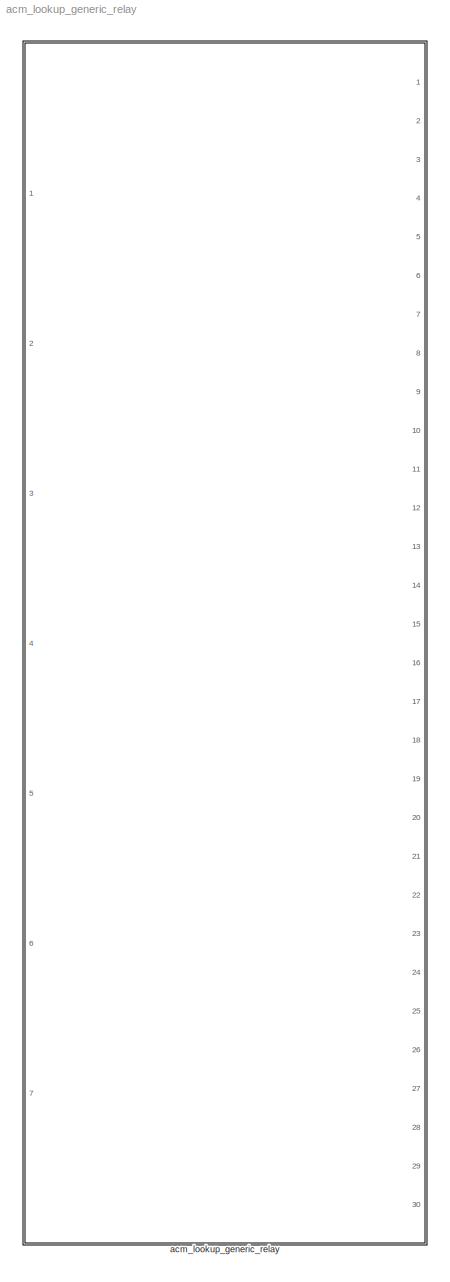
MODEL acm_lookup_generic_relay
KIND library
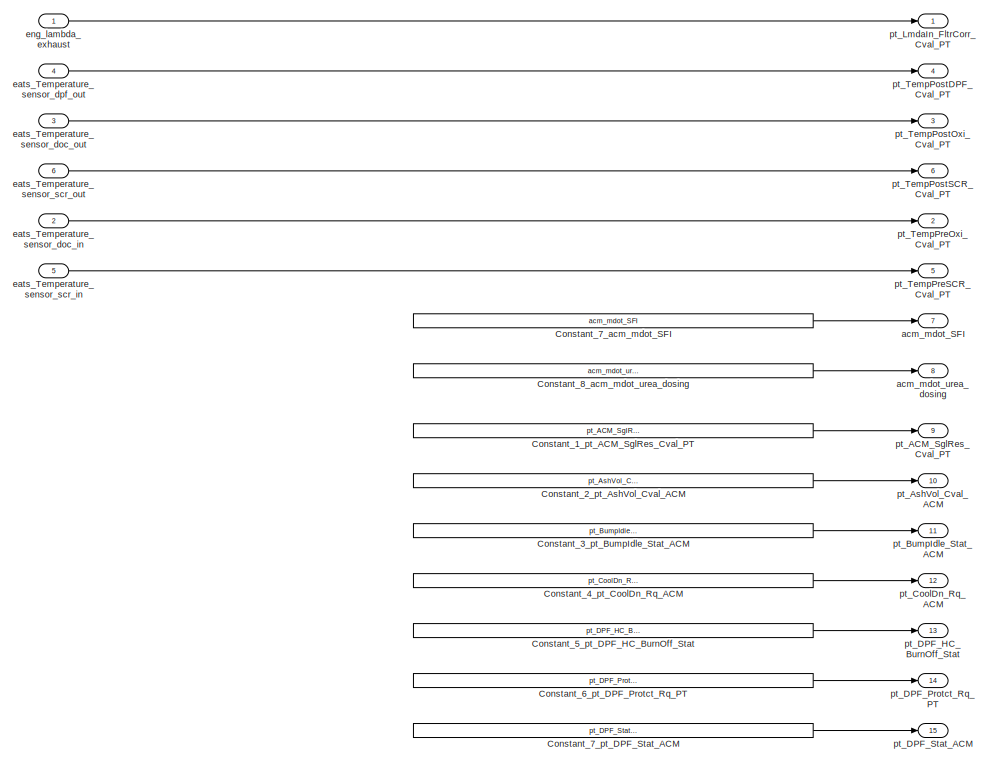
[diagram: acm_lookup_generic_relay - part 1/2, full width, top band]
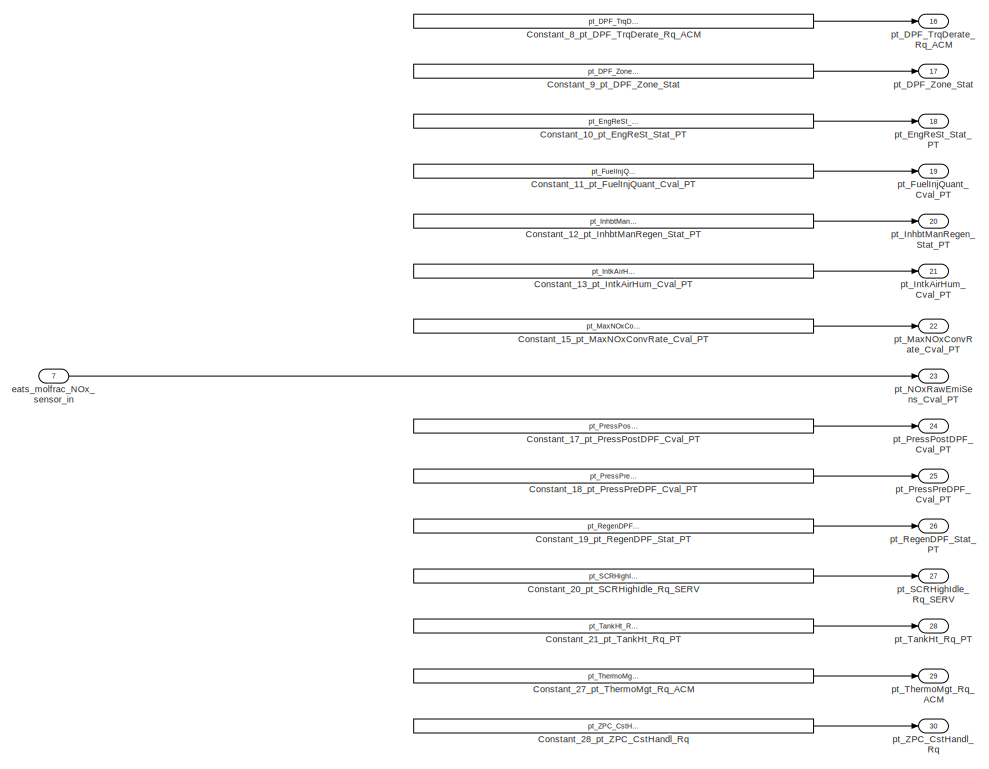
[diagram: acm_lookup_generic_relay - part 2/2, full width, bottom band]
BLOCK [SubSystem] acm_lookup_generic_relay
  FunctionWithSeparateData = off
  MaskCallbackString = |||||||||||||||||||||||
  MaskDescription = This block relays signals of engine and EATS to allow a correct MCM operation for thermomanagent map determination according EATS temperatures and NOx sensor signal without an real ACM.\n\nThe SFI and urea dosing values are only constant signals to satisfy special MCM instruemantion blocks (OutputMVA).
  MaskEnableString = on,on,on,on,on,on,on,on,on,on,on,on,on,on,on,on,on,on,on,on,on,on,on,on
  MaskHideContents = off
  MaskIconFrame = on
  MaskIconOpaque = on
  MaskIconRotate = none
  MaskIconUnits = autoscale
  MaskPortRotate = default
  MaskPromptString = Massflow of secondary fuel injection (before DOC) (constant) [g/s]|Massflow of urea/AdBlue (constant) [g/h]|Constant value of pt_ACM_SglRes_Cval_PT|Constant value of  pt_AshVol_Cval_ACM|Constant value of pt_BumpIdle_Stat_ACM|Constant value of pt_CoolDn_Rq_ACM|Constant value of pt_DPF_HC_BurnOff_Stat|Constant value of pt_DPF_Protct_Rq_PT|Constant value of pt_DPF_Stat_ACM|Constant value of pt_DPF_Tr...<+569ch>
  MaskStyleString = edit,edit,edit,edit,edit,edit,edit,edit,edit,edit,edit,edit,edit,edit,edit,edit,edit,edit,edit,edit,edit,edit,edit,edit
  MaskToolTipString = on,on,on,on,on,on,on,on,on,on,on,on,on,on,on,on,on,on,on,on,on,on,on,on
  MaskTunableValueString = on,on,on,on,on,on,on,on,on,on,on,on,on,on,on,on,on,on,on,on,on,on,on,on
  MaskType = DIVeMB lookup
  MaskValueString = sMP.ctrl.acm.out.acm_mdot_SFI|sMP.ctrl.acm.out.acm_mdot_urea_dosing|sMP.ctrl.acm.out.pt_ACM_SglRes_Cval_PT|sMP.ctrl.acm.out.pt_AshVol_Cval_ACM|sMP.ctrl.acm.out.pt_BumpIdle_Stat_ACM|sMP.ctrl.acm.out.pt_CoolDn_Rq_ACM|sMP.ctrl.acm.out.pt_DPF_HC_BurnOff_Stat|sMP.ctrl.acm.out.pt_DPF_Protct_Rq_PT|sMP.ctrl.acm.out.pt_DPF_Stat_ACM|sMP.ctrl.acm.out.pt_DPF_TrqDerate_Rq_ACM|sMP.ctrl.acm.out.pt_DPF_Zone_Stat|...<+506ch>
  MaskVariables = acm_mdot_SFI=@1;acm_mdot_urea_dosing=@2;pt_ACM_SglRes_Cval_PT=@3;pt_AshVol_Cval_ACM=@4;pt_BumpIdle_Stat_ACM=@5;pt_CoolDn_Rq_ACM=@6;pt_DPF_HC_BurnOff_Stat=@7;pt_DPF_Protct_Rq_PT=@8;pt_DPF_Stat_ACM=@9;pt_DPF_TrqDerate_Rq_ACM=@10;pt_DPF_Zone_Stat=@11;pt_EngReSt_Stat_PT=@12;pt_FuelInjQuant_Cval_PT=@13;pt_InhbtManRegen_Stat_PT=@14;pt_IntkAirHum_Cval_PT=@15;pt_MaxNOxConvRate_Cval_PT=@16;pt_NOxRawEmiSens...<+186ch>
  MaskVisibilityString = on,on,on,on,on,on,on,on,on,on,on,on,on,on,on,on,on,on,on,on,on,on,on,on
  MinAlgLoopOccurrences = off
  Opaque = off
  Ports = [7, 30]
  PropExecContextOutsideSubsystem = off
  RTWSystemCode = Auto
  RequestExecContextInheritance = off
  SID = 1
BLOCK [Constant] acm_lookup_generic_relay/Constant_10_pt_EngReSt_Stat_PT
  SID = 8
  Value = pt_EngReSt_Stat_PT
BLOCK [Constant] acm_lookup_generic_relay/Constant_11_pt_FuelInjQuant_Cval_PT
  SID = 9
  Value = pt_FuelInjQuant_Cval_PT
BLOCK [Constant] acm_lookup_generic_relay/Constant_12_pt_InhbtManRegen_Stat_PT
  SID = 10
  Value = pt_InhbtManRegen_Stat_PT
BLOCK [Constant] acm_lookup_generic_relay/Constant_13_pt_IntkAirHum_Cval_PT
  SID = 11
  Value = pt_IntkAirHum_Cval_PT
BLOCK [Constant] acm_lookup_generic_relay/Constant_15_pt_MaxNOxConvRate_Cval_PT
  SID = 12
  Value = pt_MaxNOxConvRate_Cval_PT
BLOCK [Constant] acm_lookup_generic_relay/Constant_17_pt_PressPostDPF_Cval_PT
  SID = 14
  Value = pt_PressPostDPF_Cval_PT
BLOCK [Constant] acm_lookup_generic_relay/Constant_18_pt_PressPreDPF_Cval_PT
  SID = 15
  Value = pt_PressPreDPF_Cval_PT
BLOCK [Constant] acm_lookup_generic_relay/Constant_19_pt_RegenDPF_Stat_PT
  SID = 16
  Value = pt_RegenDPF_Stat_PT
BLOCK [Constant] acm_lookup_generic_relay/Constant_1_pt_ACM_SglRes_Cval_PT
  SID = 17
  Value = pt_ACM_SglRes_Cval_PT
BLOCK [Constant] acm_lookup_generic_relay/Constant_20_pt_SCRHighIdle_Rq_SERV
  SID = 18
  Value = pt_SCRHighIdle_Rq_SERV
BLOCK [Constant] acm_lookup_generic_relay/Constant_21_pt_TankHt_Rq_PT
  SID = 19
  Value = pt_TankHt_Rq_PT
BLOCK [Constant] acm_lookup_generic_relay/Constant_27_pt_ThermoMgt_Rq_ACM
  SID = 20
  Value = pt_ThermoMgt_Rq_ACM
BLOCK [Constant] acm_lookup_generic_relay/Constant_28_pt_ZPC_CstHandl_Rq
  SID = 21
  Value = pt_ZPC_CstHandl_Rq
BLOCK [Constant] acm_lookup_generic_relay/Constant_2_pt_AshVol_Cval_ACM
  SID = 22
  Value = pt_AshVol_Cval_ACM
BLOCK [Constant] acm_lookup_generic_relay/Constant_3_pt_BumpIdle_Stat_ACM
  SID = 23
  Value = pt_BumpIdle_Stat_ACM
BLOCK [Constant] acm_lookup_generic_relay/Constant_4_pt_CoolDn_Rq_ACM
  SID = 24
  Value = pt_CoolDn_Rq_ACM
BLOCK [Constant] acm_lookup_generic_relay/Constant_5_pt_DPF_HC_BurnOff_Stat
  SID = 25
  Value = pt_DPF_HC_BurnOff_Stat
BLOCK [Constant] acm_lookup_generic_relay/Constant_6_pt_DPF_Protct_Rq_PT
  SID = 26
  Value = pt_DPF_Protct_Rq_PT
BLOCK [Constant] acm_lookup_generic_relay/Constant_7_acm_mdot_SFI
  SID = 27
  Value = acm_mdot_SFI
BLOCK [Constant] acm_lookup_generic_relay/Constant_7_pt_DPF_Stat_ACM
  SID = 28
  Value = pt_DPF_Stat_ACM
BLOCK [Constant] acm_lookup_generic_relay/Constant_8_acm_mdot_urea_dosing
  SID = 29
  Value = acm_mdot_urea_dosing
BLOCK [Constant] acm_lookup_generic_relay/Constant_8_pt_DPF_TrqDerate_Rq_ACM
  SID = 30
  Value = pt_DPF_TrqDerate_Rq_ACM
BLOCK [Constant] acm_lookup_generic_relay/Constant_9_pt_DPF_Zone_Stat
  SID = 31
  Value = pt_DPF_Zone_Stat
BLOCK [Outport] acm_lookup_generic_relay/acm_mdot_SFI
  IconDisplay = Port number
  Port = 7
  SID = 38
BLOCK [Outport] acm_lookup_generic_relay/acm_mdot_urea_dosing
  IconDisplay = Port number
  Port = 8
  SID = 39
BLOCK [Inport] acm_lookup_generic_relay/eats_Temperature_sensor_doc_in
  IconDisplay = Port number
  Port = 2
  SID = 3
BLOCK [Inport] acm_lookup_generic_relay/eats_Temperature_sensor_doc_out
  IconDisplay = Port number
  Port = 3
  SID = 4
BLOCK [Inport] acm_lookup_generic_relay/eats_Temperature_sensor_dpf_out
  IconDisplay = Port number
  Port = 4
  SID = 5
BLOCK [Inport] acm_lookup_generic_relay/eats_Temperature_sensor_scr_in
  IconDisplay = Port number
  Port = 5
  SID = 6
BLOCK [Inport] acm_lookup_generic_relay/eats_Temperature_sensor_scr_out
  IconDisplay = Port number
  Port = 6
  SID = 7
BLOCK [Inport] acm_lookup_generic_relay/eats_molfrac_NOx_sensor_in
  IconDisplay = Port number
  Port = 7
  SID = 62
BLOCK [Inport] acm_lookup_generic_relay/eng_lambda_exhaust
  IconDisplay = Port number
  SID = 2
BLOCK [Outport] acm_lookup_generic_relay/pt_ACM_SglRes_Cval_PT
  IconDisplay = Port number
  Port = 9
  SID = 40
BLOCK [Outport] acm_lookup_generic_relay/pt_AshVol_Cval_ACM
  IconDisplay = Port number
  Port = 10
  SID = 41
BLOCK [Outport] acm_lookup_generic_relay/pt_BumpIdle_Stat_ACM
  IconDisplay = Port number
  Port = 11
  SID = 42
BLOCK [Outport] acm_lookup_generic_relay/pt_CoolDn_Rq_ACM
  IconDisplay = Port number
  Port = 12
  SID = 43
BLOCK [Outport] acm_lookup_generic_relay/pt_DPF_HC_BurnOff_Stat
  IconDisplay = Port number
  Port = 13
  SID = 44
BLOCK [Outport] acm_lookup_generic_relay/pt_DPF_Protct_Rq_PT
  IconDisplay = Port number
  Port = 14
  SID = 45
BLOCK [Outport] acm_lookup_generic_relay/pt_DPF_Stat_ACM
  IconDisplay = Port number
  Port = 15
  SID = 46
BLOCK [Outport] acm_lookup_generic_relay/pt_DPF_TrqDerate_Rq_ACM
  IconDisplay = Port number
  Port = 16
  SID = 47
BLOCK [Outport] acm_lookup_generic_relay/pt_DPF_Zone_Stat
  IconDisplay = Port number
  Port = 17
  SID = 48
BLOCK [Outport] acm_lookup_generic_relay/pt_EngReSt_Stat_PT
  IconDisplay = Port number
  Port = 18
  SID = 49
BLOCK [Outport] acm_lookup_generic_relay/pt_FuelInjQuant_Cval_PT
  IconDisplay = Port number
  Port = 19
  SID = 50
BLOCK [Outport] acm_lookup_generic_relay/pt_InhbtManRegen_Stat_PT
  IconDisplay = Port number
  Port = 20
  SID = 51
BLOCK [Outport] acm_lookup_generic_relay/pt_IntkAirHum_Cval_PT
  IconDisplay = Port number
  Port = 21
  SID = 52
BLOCK [Outport] acm_lookup_generic_relay/pt_LmdaIn_FltrCorr_Cval_PT
  IconDisplay = Port number
  SID = 32
BLOCK [Outport] acm_lookup_generic_relay/pt_MaxNOxConvRate_Cval_PT
  IconDisplay = Port number
  Port = 22
  SID = 53
BLOCK [Outport] acm_lookup_generic_relay/pt_NOxRawEmiSens_Cval_PT
  IconDisplay = Port number
  Port = 23
  SID = 54
BLOCK [Outport] acm_lookup_generic_relay/pt_PressPostDPF_Cval_PT
  IconDisplay = Port number
  Port = 24
  SID = 55
BLOCK [Outport] acm_lookup_generic_relay/pt_PressPreDPF_Cval_PT
  IconDisplay = Port number
  Port = 25
  SID = 56
BLOCK [Outport] acm_lookup_generic_relay/pt_RegenDPF_Stat_PT
  IconDisplay = Port number
  Port = 26
  SID = 57
BLOCK [Outport] acm_lookup_generic_relay/pt_SCRHighIdle_Rq_SERV
  IconDisplay = Port number
  Port = 27
  SID = 58
BLOCK [Outport] acm_lookup_generic_relay/pt_TankHt_Rq_PT
  IconDisplay = Port number
  Port = 28
  SID = 59
BLOCK [Outport] acm_lookup_generic_relay/pt_TempPostDPF_Cval_PT
  IconDisplay = Port number
  Port = 4
  SID = 35
BLOCK [Outport] acm_lookup_generic_relay/pt_TempPostOxi_Cval_PT
  IconDisplay = Port number
  Port = 3
  SID = 34
BLOCK [Outport] acm_lookup_generic_relay/pt_TempPostSCR_Cval_PT
  IconDisplay = Port number
  Port = 6
  SID = 37
BLOCK [Outport] acm_lookup_generic_relay/pt_TempPreOxi_Cval_PT
  IconDisplay = Port number
  Port = 2
  SID = 33
BLOCK [Outport] acm_lookup_generic_relay/pt_TempPreSCR_Cval_PT
  IconDisplay = Port number
  Port = 5
  SID = 36
BLOCK [Outport] acm_lookup_generic_relay/pt_ThermoMgt_Rq_ACM
  IconDisplay = Port number
  Port = 29
  SID = 60
BLOCK [Outport] acm_lookup_generic_relay/pt_ZPC_CstHandl_Rq
  IconDisplay = Port number
  Port = 30
  SID = 61
LINE acm_lookup_generic_relay/Constant_10_pt_EngReSt_Stat_PT:1 -> acm_lookup_generic_relay/pt_EngReSt_Stat_PT:1
LINE acm_lookup_generic_relay/Constant_11_pt_FuelInjQuant_Cval_PT:1 -> acm_lookup_generic_relay/pt_FuelInjQuant_Cval_PT:1
LINE acm_lookup_generic_relay/Constant_12_pt_InhbtManRegen_Stat_PT:1 -> acm_lookup_generic_relay/pt_InhbtManRegen_Stat_PT:1
LINE acm_lookup_generic_relay/Constant_13_pt_IntkAirHum_Cval_PT:1 -> acm_lookup_generic_relay/pt_IntkAirHum_Cval_PT:1
LINE acm_lookup_generic_relay/Constant_15_pt_MaxNOxConvRate_Cval_PT:1 -> acm_lookup_generic_relay/pt_MaxNOxConvRate_Cval_PT:1
LINE acm_lookup_generic_relay/Constant_17_pt_PressPostDPF_Cval_PT:1 -> acm_lookup_generic_relay/pt_PressPostDPF_Cval_PT:1
LINE acm_lookup_generic_relay/Constant_18_pt_PressPreDPF_Cval_PT:1 -> acm_lookup_generic_relay/pt_PressPreDPF_Cval_PT:1
LINE acm_lookup_generic_relay/Constant_19_pt_RegenDPF_Stat_PT:1 -> acm_lookup_generic_relay/pt_RegenDPF_Stat_PT:1
LINE acm_lookup_generic_relay/Constant_1_pt_ACM_SglRes_Cval_PT:1 -> acm_lookup_generic_relay/pt_ACM_SglRes_Cval_PT:1
LINE acm_lookup_generic_relay/Constant_20_pt_SCRHighIdle_Rq_SERV:1 -> acm_lookup_generic_relay/pt_SCRHighIdle_Rq_SERV:1
LINE acm_lookup_generic_relay/Constant_21_pt_TankHt_Rq_PT:1 -> acm_lookup_generic_relay/pt_TankHt_Rq_PT:1
LINE acm_lookup_generic_relay/Constant_27_pt_ThermoMgt_Rq_ACM:1 -> acm_lookup_generic_relay/pt_ThermoMgt_Rq_ACM:1
LINE acm_lookup_generic_relay/Constant_28_pt_ZPC_CstHandl_Rq:1 -> acm_lookup_generic_relay/pt_ZPC_CstHandl_Rq:1
LINE acm_lookup_generic_relay/Constant_2_pt_AshVol_Cval_ACM:1 -> acm_lookup_generic_relay/pt_AshVol_Cval_ACM:1
LINE acm_lookup_generic_relay/Constant_3_pt_BumpIdle_Stat_ACM:1 -> acm_lookup_generic_relay/pt_BumpIdle_Stat_ACM:1
LINE acm_lookup_generic_relay/Constant_4_pt_CoolDn_Rq_ACM:1 -> acm_lookup_generic_relay/pt_CoolDn_Rq_ACM:1
LINE acm_lookup_generic_relay/Constant_5_pt_DPF_HC_BurnOff_Stat:1 -> acm_lookup_generic_relay/pt_DPF_HC_BurnOff_Stat:1
LINE acm_lookup_generic_relay/Constant_6_pt_DPF_Protct_Rq_PT:1 -> acm_lookup_generic_relay/pt_DPF_Protct_Rq_PT:1
LINE acm_lookup_generic_relay/Constant_7_acm_mdot_SFI:1 -> acm_lookup_generic_relay/acm_mdot_SFI:1
LINE acm_lookup_generic_relay/Constant_7_pt_DPF_Stat_ACM:1 -> acm_lookup_generic_relay/pt_DPF_Stat_ACM:1
LINE acm_lookup_generic_relay/Constant_8_acm_mdot_urea_dosing:1 -> acm_lookup_generic_relay/acm_mdot_urea_dosing:1
LINE acm_lookup_generic_relay/Constant_8_pt_DPF_TrqDerate_Rq_ACM:1 -> acm_lookup_generic_relay/pt_DPF_TrqDerate_Rq_ACM:1
LINE acm_lookup_generic_relay/Constant_9_pt_DPF_Zone_Stat:1 -> acm_lookup_generic_relay/pt_DPF_Zone_Stat:1
LINE acm_lookup_generic_relay/eats_Temperature_sensor_doc_in:1 -> acm_lookup_generic_relay/pt_TempPreOxi_Cval_PT:1
LINE acm_lookup_generic_relay/eats_Temperature_sensor_doc_out:1 -> acm_lookup_generic_relay/pt_TempPostOxi_Cval_PT:1
LINE acm_lookup_generic_relay/eats_Temperature_sensor_dpf_out:1 -> acm_lookup_generic_relay/pt_TempPostDPF_Cval_PT:1
LINE acm_lookup_generic_relay/eats_Temperature_sensor_scr_in:1 -> acm_lookup_generic_relay/pt_TempPreSCR_Cval_PT:1
LINE acm_lookup_generic_relay/eats_Temperature_sensor_scr_out:1 -> acm_lookup_generic_relay/pt_TempPostSCR_Cval_PT:1
LINE acm_lookup_generic_relay/eats_molfrac_NOx_sensor_in:1 -> acm_lookup_generic_relay/pt_NOxRawEmiSens_Cval_PT:1
LINE acm_lookup_generic_relay/eng_lambda_exhaust:1 -> acm_lookup_generic_relay/pt_LmdaIn_FltrCorr_Cval_PT:1
